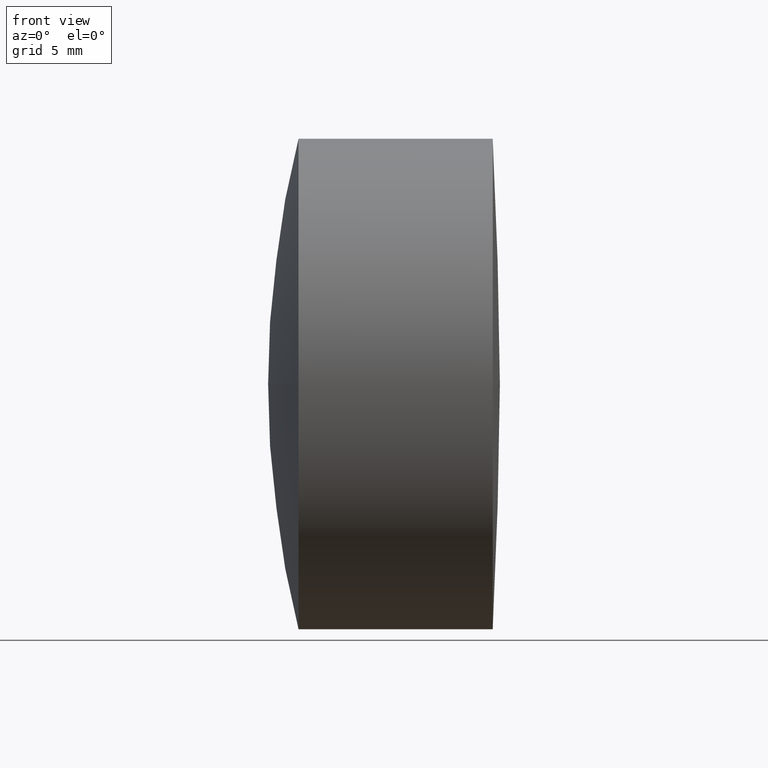
[diagram: clean part render]
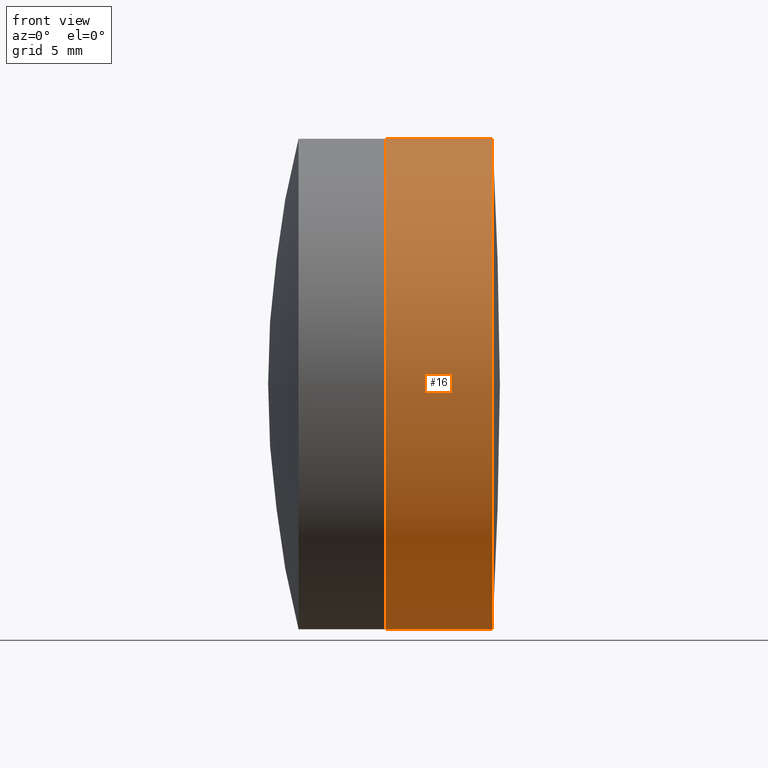
[diagram: same view with one face highlighted and labeled with its STEP entity id]
A machine part, front view. The second image highlights one B-rep face of the part: STEP entity #16.
In plain terms, the highlighted cylindrical surface (partial cylindrical patch) has radius 12.7 mm, axis along (-1, -0, -0).
Its self-contained STEP definition (entity closure, byte-faithful):
#8 = EDGE_CURVE ( 'NONE', #280, #40, #249, .T. ) ;
#16 = ADVANCED_FACE ( 'NONE', ( #126 ), #199, .T. ) ;
#32 = CARTESIAN_POINT ( 'NONE',  ( -7.331897332836897263, 0.04597092655642145975, 12.69999999999999929 ) ) ;
#34 = VECTOR ( 'NONE', #315, 1000.000000000000000 ) ;
#40 = VERTEX_POINT ( 'NONE', #92 ) ;
#56 = ORIENTED_EDGE ( 'NONE', *, *, #91, .T. ) ;
#64 = CARTESIAN_POINT ( 'NONE',  ( -9.233489259202423582, 0.04597092655641990544, 25.39999999999999858 ) ) ;
#69 = CARTESIAN_POINT ( 'NONE',  ( -3.703217843767207196, 0.04597092655642145975, 12.69999999999999929 ) ) ;
#84 = AXIS2_PLACEMENT_3D ( 'NONE', #403, #204, #90 ) ;
#90 = DIRECTION ( 'NONE',  ( 0.000000000000000000, 0.000000000000000000, 1.000000000000000000 ) ) ;
#91 = EDGE_CURVE ( 'NONE', #263, #298, #264, .T. ) ;
#92 = CARTESIAN_POINT ( 'NONE',  ( -9.233489259202420030, -12.65402907344357786, 25.39999999999999858 ) ) ;
#102 = VERTEX_POINT ( 'NONE', #239 ) ;
#124 = CARTESIAN_POINT ( 'NONE',  ( -7.331897332836897263, 0.04597092655641990544, 25.39999999999999858 ) ) ;
#126 = FACE_OUTER_BOUND ( 'NONE', #391, .T. ) ;
#161 = ORIENTED_EDGE ( 'NONE', *, *, #379, .T. ) ;
#165 = DIRECTION ( 'NONE',  ( 0.000000000000000000, 0.000000000000000000, 1.000000000000000000 ) ) ;
#189 = DIRECTION ( 'NONE',  ( 0.000000000000000000, 0.000000000000000000, 1.000000000000000000 ) ) ;
#194 = CARTESIAN_POINT ( 'NONE',  ( -9.233489259202423582, 0.04597092655641990544, 38.09999999999999432 ) ) ;
#199 = CYLINDRICAL_SURFACE ( 'NONE', #377, 12.69999999999999574 ) ;
#204 = DIRECTION ( 'NONE',  ( -1.000000000000000000, -0.000000000000000000, -0.000000000000000000 ) ) ;
#222 = CARTESIAN_POINT ( 'NONE',  ( -3.703217843767207196, 0.04597092655641990544, 25.39999999999999858 ) ) ;
#224 = EDGE_CURVE ( 'NONE', #263, #280, #345, .T. ) ;
#226 = LINE ( 'NONE', #317, #374 ) ;
#233 = DIRECTION ( 'NONE',  ( -1.000000000000000000, -0.000000000000000000, -0.000000000000000000 ) ) ;
#237 = ORIENTED_EDGE ( 'NONE', *, *, #8, .F. ) ;
#239 = CARTESIAN_POINT ( 'NONE',  ( -3.703217843767207196, 0.04597092655641990544, 38.09999999999999432 ) ) ;
#247 = AXIS2_PLACEMENT_3D ( 'NONE', #64, #248, #444 ) ;
#248 = DIRECTION ( 'NONE',  ( -1.000000000000000000, -0.000000000000000000, -0.000000000000000000 ) ) ;
#249 = CIRCLE ( 'NONE', #360, 12.69999999999999574 ) ;
#257 = EDGE_CURVE ( 'NONE', #102, #371, #226, .T. ) ;
#258 = ORIENTED_EDGE ( 'NONE', *, *, #224, .F. ) ;
#263 = VERTEX_POINT ( 'NONE', #69 ) ;
#264 = CIRCLE ( 'NONE', #84, 12.69999999999999574 ) ;
#275 = CIRCLE ( 'NONE', #442, 12.69999999999999574 ) ;
#280 = VERTEX_POINT ( 'NONE', #281 ) ;
#281 = CARTESIAN_POINT ( 'NONE',  ( -9.233489259202423582, 0.04597092655642145975, 12.69999999999999929 ) ) ;
#287 = EDGE_CURVE ( 'NONE', #40, #371, #435, .T. ) ;
#288 = DIRECTION ( 'NONE',  ( -1.000000000000000000, -0.000000000000000000, -0.000000000000000000 ) ) ;
#296 = DIRECTION ( 'NONE',  ( 0.000000000000000000, 0.000000000000000000, 1.000000000000000000 ) ) ;
#298 = VERTEX_POINT ( 'NONE', #409 ) ;
#315 = DIRECTION ( 'NONE',  ( -1.000000000000000000, -0.000000000000000000, -0.000000000000000000 ) ) ;
#317 = CARTESIAN_POINT ( 'NONE',  ( -7.331897332836897263, 0.04597092655641990544, 38.09999999999999432 ) ) ;
#329 = DIRECTION ( 'NONE',  ( -1.000000000000000000, -0.000000000000000000, -0.000000000000000000 ) ) ;
#331 = ORIENTED_EDGE ( 'NONE', *, *, #287, .F. ) ;
#345 = LINE ( 'NONE', #32, #34 ) ;
#360 = AXIS2_PLACEMENT_3D ( 'NONE', #366, #233, #165 ) ;
#366 = CARTESIAN_POINT ( 'NONE',  ( -9.233489259202423582, 0.04597092655641990544, 25.39999999999999858 ) ) ;
#371 = VERTEX_POINT ( 'NONE', #194 ) ;
#374 = VECTOR ( 'NONE', #417, 1000.000000000000000 ) ;
#377 = AXIS2_PLACEMENT_3D ( 'NONE', #124, #329, #296 ) ;
#379 = EDGE_CURVE ( 'NONE', #298, #102, #275, .T. ) ;
#391 = EDGE_LOOP ( 'NONE', ( #258, #56, #161, #425, #331, #237 ) ) ;
#403 = CARTESIAN_POINT ( 'NONE',  ( -3.703217843767207196, 0.04597092655641990544, 25.39999999999999858 ) ) ;
#409 = CARTESIAN_POINT ( 'NONE',  ( -3.703217843767205419, -12.65402907344360983, 25.39999999999999858 ) ) ;
#417 = DIRECTION ( 'NONE',  ( -1.000000000000000000, -0.000000000000000000, -0.000000000000000000 ) ) ;
#425 = ORIENTED_EDGE ( 'NONE', *, *, #257, .T. ) ;
#435 = CIRCLE ( 'NONE', #247, 12.69999999999999574 ) ;
#442 = AXIS2_PLACEMENT_3D ( 'NONE', #222, #288, #189 ) ;
#444 = DIRECTION ( 'NONE',  ( 0.000000000000000000, 0.000000000000000000, 1.000000000000000000 ) ) ;